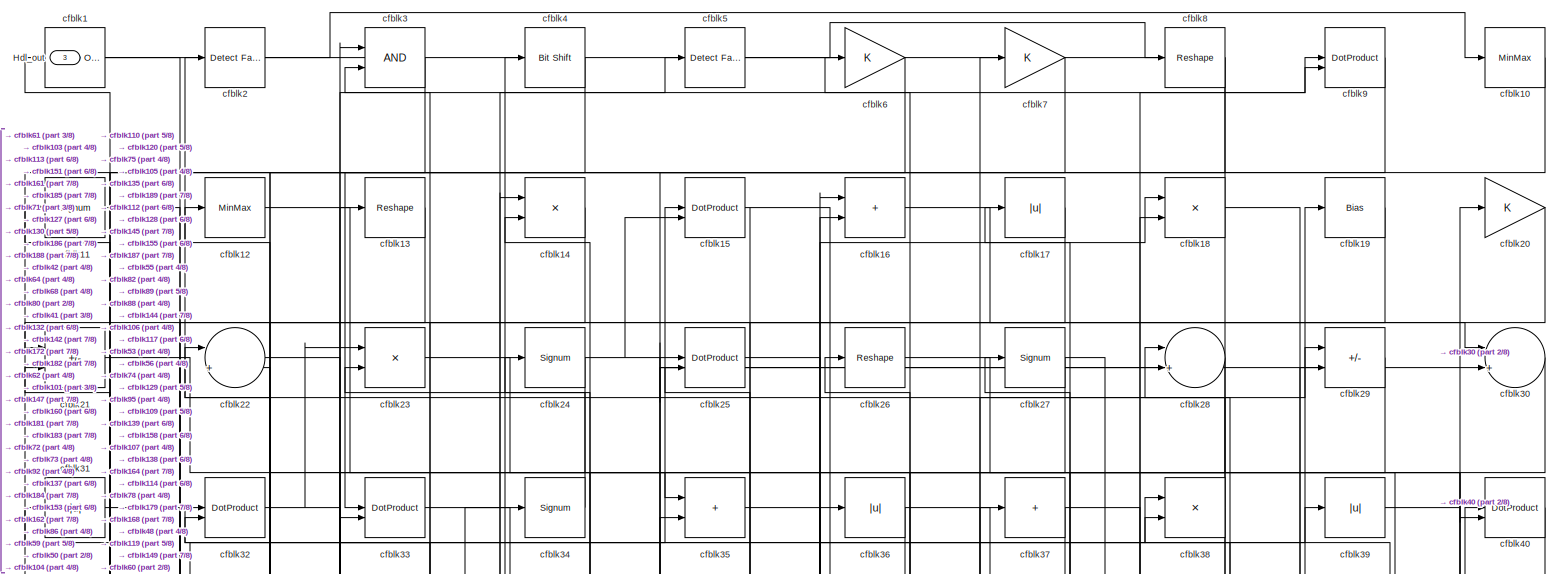
[diagram: root canvas - part 1/8, full width, top band]
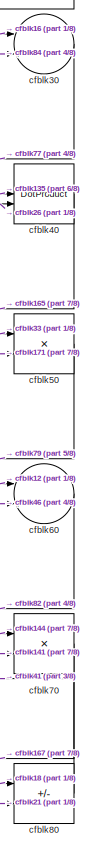
[diagram: root canvas - part 2/8, top right region]
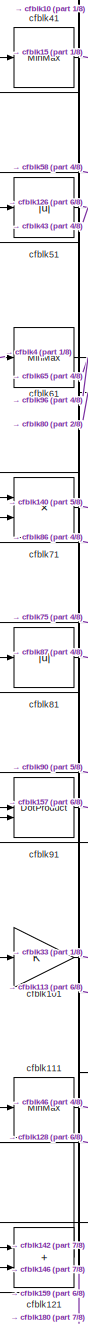
[diagram: root canvas - part 3/8, middle left region]
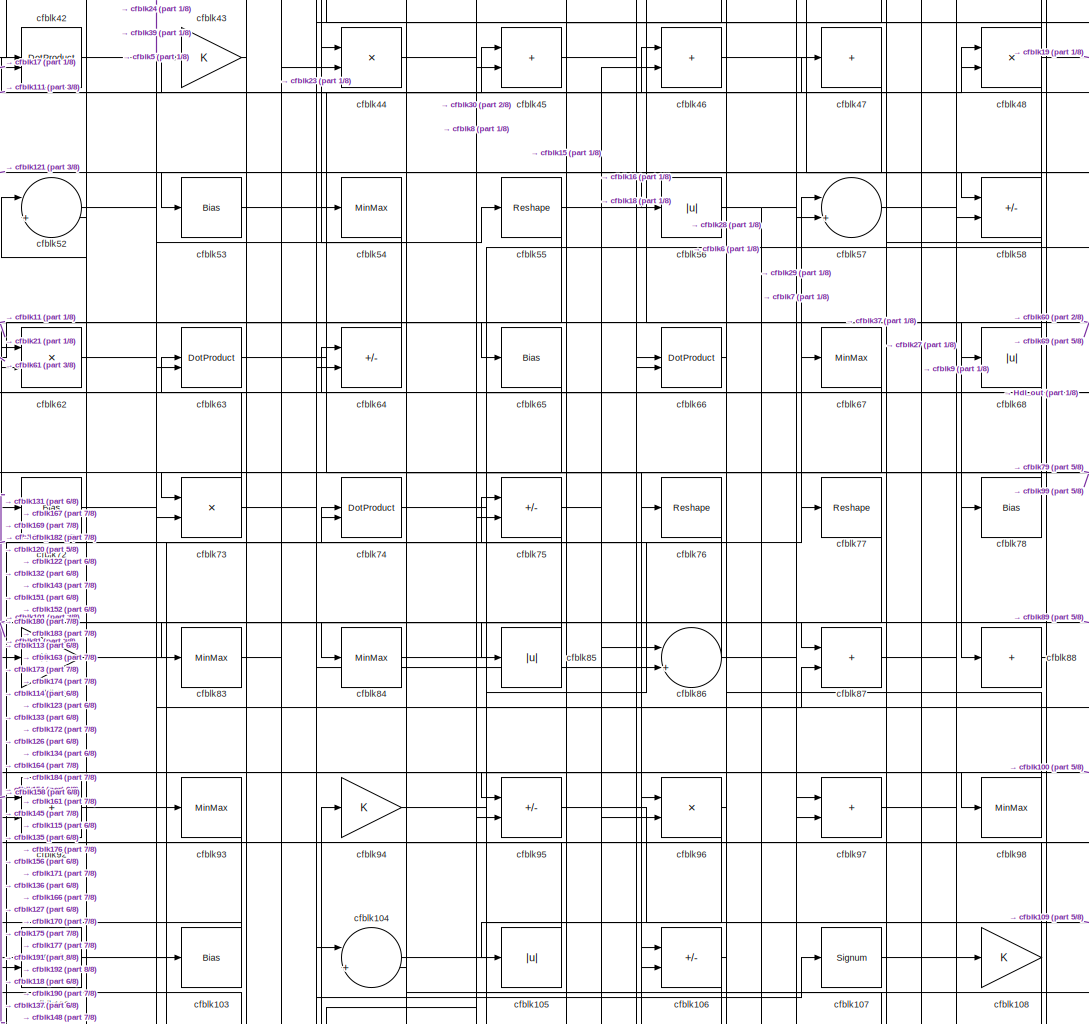
[diagram: root canvas - part 4/8, central region]
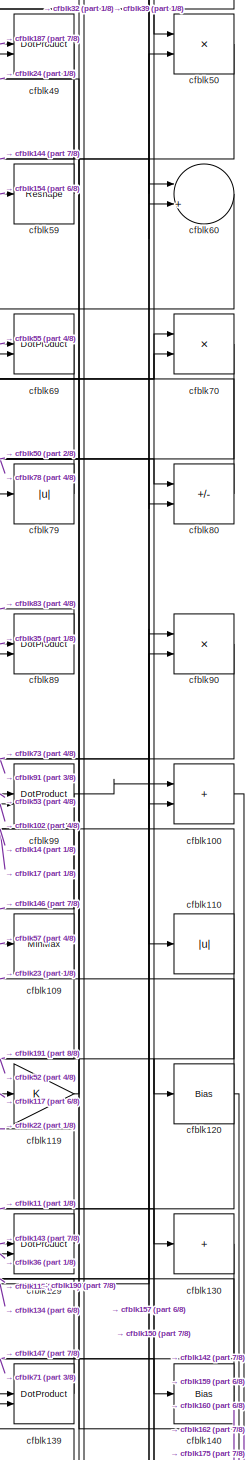
[diagram: root canvas - part 5/8, middle right region]
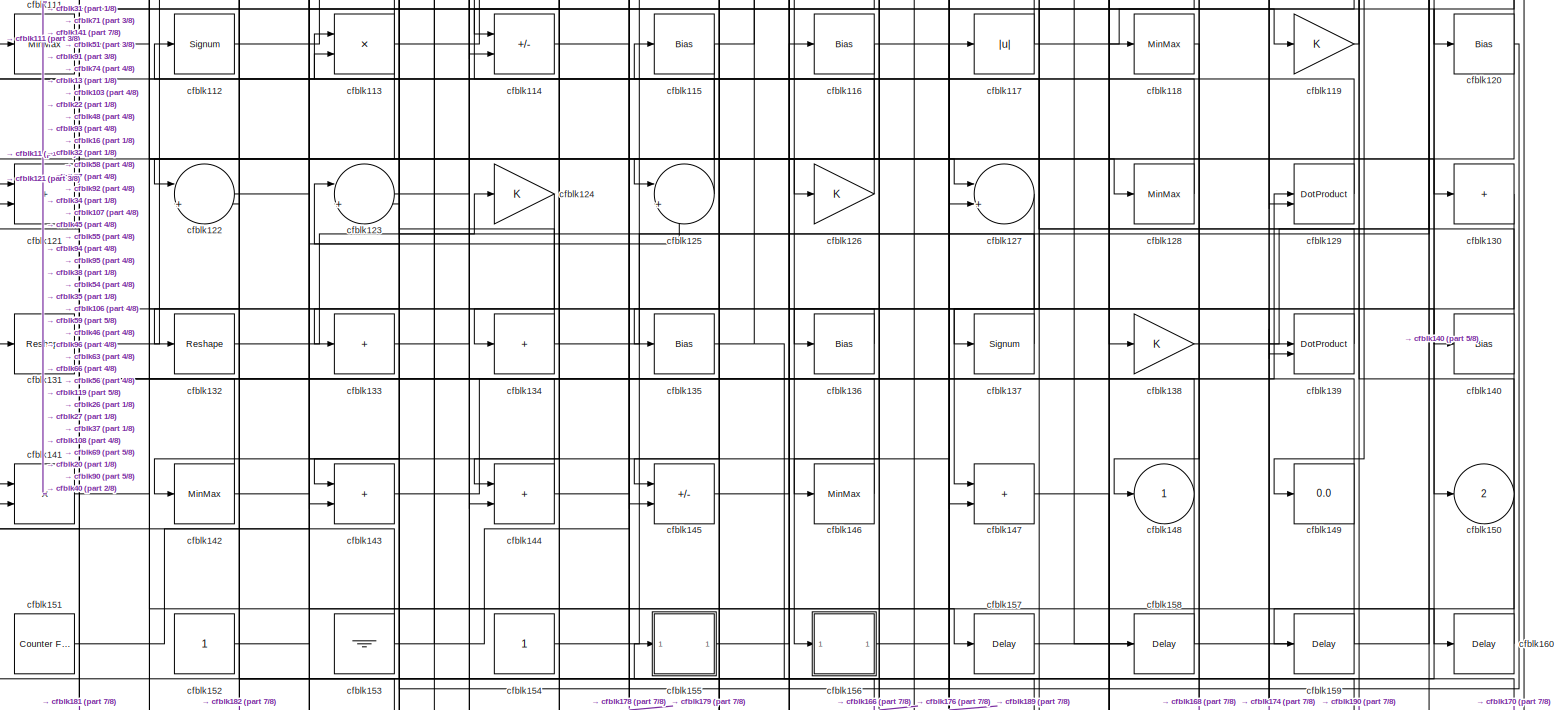
[diagram: root canvas - part 6/8, full width, bottom band]
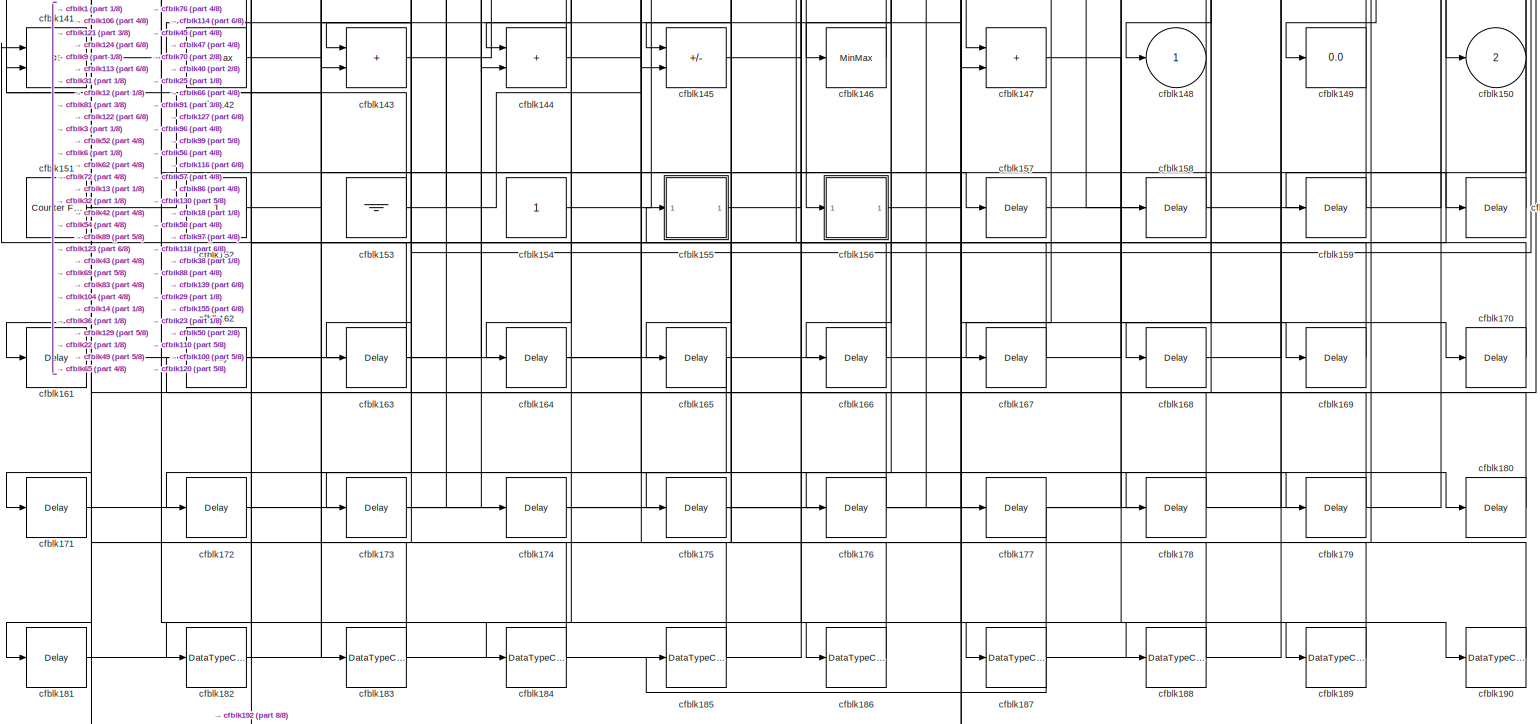
[diagram: root canvas - part 7/8, full width, bottom band]
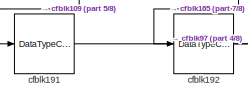
[diagram: root canvas - part 8/8, bottom left region]
MODEL slx_d97a354587f2
KIND model
CONFIG AbsTol = auto
CONFIG EnableMultiTasking = off
CONFIG FixedStep = auto
CONFIG MaxStep = auto
CONFIG MinStep = auto
CONFIG RelTol = 1e-3
CONFIG SampleTimeConstraint = Unconstrained
CONFIG SolverName = VariableStepAuto
CONFIG StartTime = 0.0
CONFIG StopTime = 10.0
BLOCK [Outport] Hdl_out
  OutDataTypeStr = uint8
  Port = 3
BLOCK [Reference] cfblk1  REF=simulink/Logic and Bit
Operations/Bitwise
Operator
  LibrarySourceBlock = hdlsllib/Logic and Bit\nOperations/Bitwise\nOperator
  SourceBlock = simulink/Logic and Bit\nOperations/Bitwise\nOperator
  SourceType = Bitwise Operator
BLOCK [MinMax] cfblk10
  OutDataTypeStr = uint8
BLOCK [Sum] cfblk100
  IconShape = rectangular
  OutDataTypeStr = uint8
BLOCK [Gain] cfblk101
  OutDataTypeStr = uint8
BLOCK [DotProduct] cfblk102
  OutDataTypeStr = uint8
BLOCK [Bias] cfblk103
  Bias = 0.0
  SaturateOnIntegerOverflow = off
BLOCK [Sum] cfblk104
  Inputs = |++
  OutDataTypeStr = uint8
BLOCK [Abs] cfblk105
  OutDataTypeStr = uint8
  SaturateOnIntegerOverflow = off
BLOCK [Sum] cfblk106
  IconShape = rectangular
  Inputs = +-
  OutDataTypeStr = uint8
BLOCK [Signum] cfblk107
BLOCK [Gain] cfblk108
  OutDataTypeStr = uint8
BLOCK [MinMax] cfblk109
  OutDataTypeStr = uint8
BLOCK [Signum] cfblk11
BLOCK [Abs] cfblk110
  OutDataTypeStr = uint8
  SaturateOnIntegerOverflow = off
BLOCK [MinMax] cfblk111
  OutDataTypeStr = uint8
BLOCK [Signum] cfblk112
BLOCK [Product] cfblk113
  Inputs = */
  OutDataTypeStr = uint8
  RndMeth = Zero
  SaturateOnIntegerOverflow = on
BLOCK [Sum] cfblk114
  IconShape = rectangular
  Inputs = +-
  OutDataTypeStr = uint8
BLOCK [Bias] cfblk115
  Bias = 0.0
  SaturateOnIntegerOverflow = off
BLOCK [Bias] cfblk116
  Bias = 0.0
  SaturateOnIntegerOverflow = off
BLOCK [Abs] cfblk117
  OutDataTypeStr = uint8
  SaturateOnIntegerOverflow = off
BLOCK [MinMax] cfblk118
  OutDataTypeStr = uint8
BLOCK [Gain] cfblk119
  OutDataTypeStr = uint8
BLOCK [MinMax] cfblk12
  OutDataTypeStr = uint8
BLOCK [Bias] cfblk120
  Bias = 0.0
  SaturateOnIntegerOverflow = off
BLOCK [Sum] cfblk121
  IconShape = rectangular
  OutDataTypeStr = uint8
BLOCK [Sum] cfblk122
  Inputs = |++
  OutDataTypeStr = uint8
BLOCK [Sum] cfblk123
  Inputs = |++
  OutDataTypeStr = uint8
BLOCK [Gain] cfblk124
  OutDataTypeStr = uint8
BLOCK [Sum] cfblk125
  Inputs = |++
  OutDataTypeStr = uint8
BLOCK [Gain] cfblk126
  OutDataTypeStr = uint8
BLOCK [Sum] cfblk127
  Inputs = |++
  OutDataTypeStr = uint8
BLOCK [MinMax] cfblk128
  OutDataTypeStr = uint8
BLOCK [DotProduct] cfblk129
  OutDataTypeStr = uint8
BLOCK [Reshape] cfblk13
BLOCK [Sum] cfblk130
  IconShape = rectangular
  Inputs = +
  OutDataTypeStr = uint8
BLOCK [Reshape] cfblk131
BLOCK [Reshape] cfblk132
BLOCK [Sum] cfblk133
  IconShape = rectangular
  Inputs = +
  OutDataTypeStr = uint8
BLOCK [Sum] cfblk134
  IconShape = rectangular
  Inputs = +
  OutDataTypeStr = uint8
BLOCK [Bias] cfblk135
  Bias = 0.0
  SaturateOnIntegerOverflow = off
BLOCK [Bias] cfblk136
  Bias = 0.0
  SaturateOnIntegerOverflow = off
BLOCK [Signum] cfblk137
BLOCK [Gain] cfblk138
  OutDataTypeStr = uint8
BLOCK [DotProduct] cfblk139
  OutDataTypeStr = uint8
BLOCK [Product] cfblk14
  Inputs = */
  OutDataTypeStr = uint8
  RndMeth = Zero
  SaturateOnIntegerOverflow = on
BLOCK [Bias] cfblk140
  Bias = 0.0
  SaturateOnIntegerOverflow = off
BLOCK [Product] cfblk141
  Inputs = */
  OutDataTypeStr = uint8
  RndMeth = Zero
  SaturateOnIntegerOverflow = on
BLOCK [MinMax] cfblk142
  OutDataTypeStr = uint8
BLOCK [Sum] cfblk143
  IconShape = rectangular
  OutDataTypeStr = uint8
BLOCK [Sum] cfblk144
  IconShape = rectangular
  OutDataTypeStr = uint8
BLOCK [Sum] cfblk145
  IconShape = rectangular
  Inputs = +-
  OutDataTypeStr = uint8
BLOCK [MinMax] cfblk146
  OutDataTypeStr = uint8
BLOCK [Sum] cfblk147
  IconShape = rectangular
  OutDataTypeStr = uint8
BLOCK [Outport] cfblk148
  OutDataTypeStr = uint8
  VectorParamsAs1DForOutWhenUnconnected = off
BLOCK [Display] cfblk149
  Decimation = 1
BLOCK [DotProduct] cfblk15
  OutDataTypeStr = uint8
BLOCK [Outport] cfblk150
  OutDataTypeStr = uint8
  Port = 2
  VectorParamsAs1DForOutWhenUnconnected = off
BLOCK [Reference] cfblk151  REF=hdlsllib/Sources/Counter
Free-Running
  SourceBlock = hdlsllib/Sources/Counter\nFree-Running
  SourceType = Counter Free-Running
BLOCK [Constant] cfblk152
  OutDataTypeStr = uint8
  SampleTime = -1
BLOCK [Ground] cfblk153
BLOCK [Constant] cfblk154
  OutDataTypeStr = uint8
  SampleTime = -1
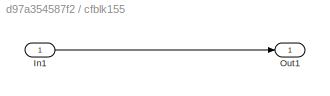
BLOCK [SubSystem] cfblk155
  LibrarySourceBlock = hdlsllib/Ports &\nSubsystems/Subsystem
BLOCK [Inport] cfblk155/In1
BLOCK [Outport] cfblk155/Out1
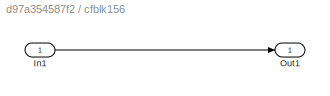
BLOCK [SubSystem] cfblk156
  LibrarySourceBlock = hdlsllib/Ports &\nSubsystems/Subsystem
BLOCK [Inport] cfblk156/In1
BLOCK [Outport] cfblk156/Out1
BLOCK [Delay] cfblk157
  InputPortMap = u0
  SampleTime = 1
BLOCK [Delay] cfblk158
  InputPortMap = u0
  SampleTime = 1
BLOCK [Delay] cfblk159
  InputPortMap = u0
  SampleTime = 1
BLOCK [Sum] cfblk16
  IconShape = rectangular
  OutDataTypeStr = uint8
BLOCK [Delay] cfblk160
  InputPortMap = u0
  SampleTime = 1
BLOCK [Delay] cfblk161
  InputPortMap = u0
  SampleTime = 1
BLOCK [Delay] cfblk162
  InputPortMap = u0
  SampleTime = 1
BLOCK [Delay] cfblk163
  InputPortMap = u0
  SampleTime = 1
BLOCK [Delay] cfblk164
  InputPortMap = u0
  SampleTime = 1
BLOCK [Delay] cfblk165
  InputPortMap = u0
  SampleTime = 1
BLOCK [Delay] cfblk166
  InputPortMap = u0
  SampleTime = 1
BLOCK [Delay] cfblk167
  InputPortMap = u0
  SampleTime = 1
BLOCK [Delay] cfblk168
  InputPortMap = u0
  SampleTime = 1
BLOCK [Delay] cfblk169
  InputPortMap = u0
  SampleTime = 1
BLOCK [Abs] cfblk17
  OutDataTypeStr = uint8
  SaturateOnIntegerOverflow = off
BLOCK [Delay] cfblk170
  InputPortMap = u0
  SampleTime = 1
BLOCK [Delay] cfblk171
  InputPortMap = u0
  SampleTime = 1
BLOCK [Delay] cfblk172
  InputPortMap = u0
  SampleTime = 1
BLOCK [Delay] cfblk173
  InputPortMap = u0
  SampleTime = 1
BLOCK [Delay] cfblk174
  InputPortMap = u0
  SampleTime = 1
BLOCK [Delay] cfblk175
  InputPortMap = u0
  SampleTime = 1
BLOCK [Delay] cfblk176
  InputPortMap = u0
  SampleTime = 1
BLOCK [Delay] cfblk177
  InputPortMap = u0
  SampleTime = 1
BLOCK [Delay] cfblk178
  InputPortMap = u0
  SampleTime = 1
BLOCK [Delay] cfblk179
  InputPortMap = u0
  SampleTime = 1
BLOCK [Product] cfblk18
  Inputs = */
  OutDataTypeStr = uint8
  RndMeth = Zero
  SaturateOnIntegerOverflow = on
BLOCK [Delay] cfblk180
  InputPortMap = u0
  SampleTime = 1
BLOCK [Delay] cfblk181
  InputPortMap = u0
  SampleTime = 1
BLOCK [DataTypeConversion] cfblk182
  OutDataTypeStr = uint8
  RndMeth = Floor
  SaturateOnIntegerOverflow = off
BLOCK [DataTypeConversion] cfblk183
  OutDataTypeStr = uint8
  RndMeth = Floor
  SaturateOnIntegerOverflow = off
BLOCK [DataTypeConversion] cfblk184
  OutDataTypeStr = uint8
  RndMeth = Floor
  SaturateOnIntegerOverflow = off
BLOCK [DataTypeConversion] cfblk185
  OutDataTypeStr = uint8
  RndMeth = Floor
  SaturateOnIntegerOverflow = off
BLOCK [DataTypeConversion] cfblk186
  OutDataTypeStr = uint8
  RndMeth = Floor
  SaturateOnIntegerOverflow = off
BLOCK [DataTypeConversion] cfblk187
  OutDataTypeStr = uint8
  RndMeth = Floor
  SaturateOnIntegerOverflow = off
BLOCK [DataTypeConversion] cfblk188
  OutDataTypeStr = uint8
  RndMeth = Floor
  SaturateOnIntegerOverflow = off
BLOCK [DataTypeConversion] cfblk189
  OutDataTypeStr = uint8
  RndMeth = Floor
  SaturateOnIntegerOverflow = off
BLOCK [Bias] cfblk19
  Bias = 0.0
  SaturateOnIntegerOverflow = off
BLOCK [DataTypeConversion] cfblk190
  OutDataTypeStr = uint8
  RndMeth = Floor
  SaturateOnIntegerOverflow = off
BLOCK [DataTypeConversion] cfblk191
  OutDataTypeStr = uint8
  RndMeth = Floor
  SaturateOnIntegerOverflow = off
BLOCK [DataTypeConversion] cfblk192
  OutDataTypeStr = uint8
  RndMeth = Floor
  SaturateOnIntegerOverflow = off
BLOCK [Reference] cfblk2  REF=hdlsllib/Logic and Bit
Operations/Detect Fall
Nonpositive
  SourceBlock = hdlsllib/Logic and Bit\nOperations/Detect Fall\nNonpositive
  SourceType = Detect Fall Nonpositive
BLOCK [Gain] cfblk20
  OutDataTypeStr = uint8
BLOCK [Sum] cfblk21
  IconShape = rectangular
  Inputs = +-
  OutDataTypeStr = uint8
BLOCK [Sum] cfblk22
  Inputs = |++
  OutDataTypeStr = uint8
BLOCK [Product] cfblk23
  Inputs = */
  OutDataTypeStr = uint8
  RndMeth = Zero
  SaturateOnIntegerOverflow = on
BLOCK [Signum] cfblk24
BLOCK [DotProduct] cfblk25
  OutDataTypeStr = uint8
BLOCK [Reshape] cfblk26
BLOCK [Signum] cfblk27
BLOCK [Sum] cfblk28
  Inputs = |++
  OutDataTypeStr = uint8
BLOCK [Sum] cfblk29
  IconShape = rectangular
  Inputs = +-
  OutDataTypeStr = uint8
BLOCK [Logic] cfblk3
  AllPortsSameDT = off
  OutDataTypeStr = boolean
BLOCK [Sum] cfblk30
  Inputs = |++
  OutDataTypeStr = uint8
BLOCK [Abs] cfblk31
  OutDataTypeStr = uint8
  SaturateOnIntegerOverflow = off
BLOCK [DotProduct] cfblk32
  OutDataTypeStr = uint8
BLOCK [DotProduct] cfblk33
  OutDataTypeStr = uint8
BLOCK [Signum] cfblk34
BLOCK [Sum] cfblk35
  IconShape = rectangular
  OutDataTypeStr = uint8
BLOCK [Abs] cfblk36
  OutDataTypeStr = uint8
  SaturateOnIntegerOverflow = off
BLOCK [Sum] cfblk37
  IconShape = rectangular
  Inputs = +
  OutDataTypeStr = uint8
BLOCK [Product] cfblk38
  Inputs = */
  OutDataTypeStr = uint8
  RndMeth = Zero
  SaturateOnIntegerOverflow = on
BLOCK [Abs] cfblk39
  OutDataTypeStr = uint8
  SaturateOnIntegerOverflow = off
BLOCK [Reference] cfblk4  REF=hdlsllib/Logic and Bit
Operations/Bit Shift
  SourceBlock = hdlsllib/Logic and Bit\nOperations/Bit Shift
  SourceType = Bit Shift
BLOCK [DotProduct] cfblk40
  OutDataTypeStr = uint8
BLOCK [MinMax] cfblk41
  OutDataTypeStr = uint8
BLOCK [DotProduct] cfblk42
  OutDataTypeStr = uint8
BLOCK [Gain] cfblk43
  OutDataTypeStr = uint8
BLOCK [Product] cfblk44
  Inputs = */
  OutDataTypeStr = uint8
  RndMeth = Zero
  SaturateOnIntegerOverflow = on
BLOCK [Sum] cfblk45
  IconShape = rectangular
  OutDataTypeStr = uint8
BLOCK [Sum] cfblk46
  IconShape = rectangular
  OutDataTypeStr = uint8
BLOCK [Sum] cfblk47
  IconShape = rectangular
  Inputs = +
  OutDataTypeStr = uint8
BLOCK [Product] cfblk48
  Inputs = */
  OutDataTypeStr = uint8
  RndMeth = Zero
  SaturateOnIntegerOverflow = on
BLOCK [DotProduct] cfblk49
  OutDataTypeStr = uint8
BLOCK [Reference] cfblk5  REF=hdlsllib/Logic and Bit
Operations/Detect Fall
Nonpositive
  SourceBlock = hdlsllib/Logic and Bit\nOperations/Detect Fall\nNonpositive
  SourceType = Detect Fall Nonpositive
BLOCK [Product] cfblk50
  Inputs = */
  OutDataTypeStr = uint8
  RndMeth = Zero
  SaturateOnIntegerOverflow = on
BLOCK [Abs] cfblk51
  OutDataTypeStr = uint8
  SaturateOnIntegerOverflow = off
BLOCK [Sum] cfblk52
  Inputs = |++
  OutDataTypeStr = uint8
BLOCK [Bias] cfblk53
  Bias = 0.0
  SaturateOnIntegerOverflow = off
BLOCK [MinMax] cfblk54
  OutDataTypeStr = uint8
BLOCK [Reshape] cfblk55
BLOCK [Abs] cfblk56
  OutDataTypeStr = uint8
  SaturateOnIntegerOverflow = off
BLOCK [Sum] cfblk57
  Inputs = |++
  OutDataTypeStr = uint8
BLOCK [Sum] cfblk58
  IconShape = rectangular
  Inputs = +-
  OutDataTypeStr = uint8
BLOCK [Reshape] cfblk59
BLOCK [Gain] cfblk6
  OutDataTypeStr = uint8
BLOCK [Sum] cfblk60
  Inputs = |++
  OutDataTypeStr = uint8
BLOCK [MinMax] cfblk61
  OutDataTypeStr = uint8
BLOCK [Product] cfblk62
  Inputs = */
  OutDataTypeStr = uint8
  RndMeth = Zero
  SaturateOnIntegerOverflow = on
BLOCK [DotProduct] cfblk63
  OutDataTypeStr = uint8
BLOCK [Sum] cfblk64
  IconShape = rectangular
  Inputs = +-
  OutDataTypeStr = uint8
BLOCK [Bias] cfblk65
  Bias = 0.0
  SaturateOnIntegerOverflow = off
BLOCK [DotProduct] cfblk66
  OutDataTypeStr = uint8
BLOCK [MinMax] cfblk67
  OutDataTypeStr = uint8
BLOCK [Abs] cfblk68
  OutDataTypeStr = uint8
  SaturateOnIntegerOverflow = off
BLOCK [DotProduct] cfblk69
  OutDataTypeStr = uint8
BLOCK [Gain] cfblk7
  OutDataTypeStr = uint8
BLOCK [Product] cfblk70
  Inputs = */
  OutDataTypeStr = uint8
  RndMeth = Zero
  SaturateOnIntegerOverflow = on
BLOCK [Product] cfblk71
  Inputs = */
  OutDataTypeStr = uint8
  RndMeth = Zero
  SaturateOnIntegerOverflow = on
BLOCK [Bias] cfblk72
  Bias = 0.0
  SaturateOnIntegerOverflow = off
BLOCK [Product] cfblk73
  Inputs = */
  OutDataTypeStr = uint8
  RndMeth = Zero
  SaturateOnIntegerOverflow = on
BLOCK [DotProduct] cfblk74
  OutDataTypeStr = uint8
BLOCK [Sum] cfblk75
  IconShape = rectangular
  Inputs = +-
  OutDataTypeStr = uint8
BLOCK [Reshape] cfblk76
BLOCK [Reshape] cfblk77
BLOCK [Bias] cfblk78
  Bias = 0.0
  SaturateOnIntegerOverflow = off
BLOCK [Abs] cfblk79
  OutDataTypeStr = uint8
  SaturateOnIntegerOverflow = off
BLOCK [Reshape] cfblk8
BLOCK [Sum] cfblk80
  IconShape = rectangular
  Inputs = +-
  OutDataTypeStr = uint8
BLOCK [Abs] cfblk81
  OutDataTypeStr = uint8
  SaturateOnIntegerOverflow = off
BLOCK [Gain] cfblk82
  OutDataTypeStr = uint8
BLOCK [MinMax] cfblk83
  OutDataTypeStr = uint8
BLOCK [MinMax] cfblk84
  OutDataTypeStr = uint8
BLOCK [Abs] cfblk85
  OutDataTypeStr = uint8
  SaturateOnIntegerOverflow = off
BLOCK [Sum] cfblk86
  Inputs = |++
  OutDataTypeStr = uint8
BLOCK [Sum] cfblk87
  IconShape = rectangular
  OutDataTypeStr = uint8
BLOCK [Sum] cfblk88
  IconShape = rectangular
  Inputs = +
  OutDataTypeStr = uint8
BLOCK [DotProduct] cfblk89
  OutDataTypeStr = uint8
BLOCK [DotProduct] cfblk9
  OutDataTypeStr = uint8
BLOCK [Product] cfblk90
  Inputs = */
  OutDataTypeStr = uint8
  RndMeth = Zero
  SaturateOnIntegerOverflow = on
BLOCK [DotProduct] cfblk91
  OutDataTypeStr = uint8
BLOCK [Sum] cfblk92
  IconShape = rectangular
  OutDataTypeStr = uint8
BLOCK [MinMax] cfblk93
  OutDataTypeStr = uint8
BLOCK [Gain] cfblk94
  OutDataTypeStr = uint8
BLOCK [Sum] cfblk95
  IconShape = rectangular
  Inputs = +-
  OutDataTypeStr = uint8
BLOCK [Product] cfblk96
  Inputs = */
  OutDataTypeStr = uint8
  RndMeth = Zero
  SaturateOnIntegerOverflow = on
BLOCK [Sum] cfblk97
  IconShape = rectangular
  OutDataTypeStr = uint8
BLOCK [MinMax] cfblk98
  OutDataTypeStr = uint8
BLOCK [DotProduct] cfblk99
  OutDataTypeStr = uint8
LINE cfblk100:1 -> cfblk162:1
LINE cfblk101:1 -> cfblk33:2
LINE cfblk102:1 -> cfblk99:2
LINE cfblk103:1 -> cfblk21:2
NET cfblk104:1 -> cfblk67:1, cfblk87:2
LINE cfblk105:1 -> cfblk63:1
NET cfblk106:1 -> cfblk171:1, cfblk6:1
LINE cfblk107:1 -> cfblk9:1
NET cfblk108:1 -> cfblk137:1, cfblk64:1
NET cfblk109:1 -> cfblk17:1, cfblk191:1
LINE cfblk10:1 -> cfblk71:1
NET cfblk110:1 -> cfblk14:2, cfblk150:1
LINE cfblk111:1 -> cfblk46:1
LINE cfblk112:1 -> cfblk16:1
NET cfblk113:1 -> cfblk11:1, cfblk121:1, cfblk95:2
NET cfblk114:1 -> cfblk178:1, cfblk179:1
NET cfblk115:1 -> cfblk122:1, cfblk46:2
NET cfblk116:1 -> cfblk125:1, cfblk189:1
NET cfblk117:1 -> cfblk119:1, cfblk26:1
LINE cfblk118:1 -> cfblk168:1
LINE cfblk119:1 -> cfblk32:1
NET cfblk11:1 -> cfblk130:1, cfblk68:1
NET cfblk120:1 -> cfblk142:1, cfblk175:1, cfblk23:2
LINE cfblk121:1 -> cfblk58:1
LINE cfblk122:1 -> cfblk55:1
LINE cfblk123:1 -> cfblk45:1
LINE cfblk124:1 -> cfblk181:1
LINE cfblk125:1 -> cfblk112:1
LINE cfblk126:1 -> cfblk94:1
LINE cfblk127:1 -> cfblk176:1
LINE cfblk128:1 -> cfblk111:1
LINE cfblk129:1 -> cfblk22:2
LINE cfblk12:1 -> cfblk60:1
LINE cfblk130:1 -> cfblk147:1
LINE cfblk131:1 -> cfblk74:1
NET cfblk132:1 -> cfblk124:1, cfblk125:2, cfblk48:1
LINE cfblk133:1 -> cfblk107:1
NET cfblk134:1 -> cfblk54:1, cfblk90:2, cfblk92:2
NET cfblk135:1 -> cfblk40:1, cfblk96:2
LINE cfblk136:1 -> cfblk134:1
LINE cfblk137:1 -> cfblk32:2
LINE cfblk138:1 -> cfblk20:1
LINE cfblk139:1 -> cfblk27:1
LINE cfblk13:1 -> cfblk132:1
NET cfblk140:1 -> cfblk115:1, cfblk159:1
NET cfblk141:1 -> cfblk113:1, cfblk70:2
NET cfblk142:1 -> cfblk12:1, cfblk81:1, cfblk89:2
LINE cfblk143:1 -> cfblk129:1
NET cfblk144:1 -> cfblk22:1, cfblk70:1
LINE cfblk145:1 -> cfblk36:1
LINE cfblk146:1 -> cfblk91:1
LINE cfblk147:1 -> cfblk169:1
LINE cfblk14:1 -> cfblk21:1
NET cfblk151:1 -> cfblk103:1, cfblk31:1
LINE cfblk152:1 -> cfblk93:1
NET cfblk153:1 -> cfblk131:1, cfblk34:1, cfblk35:2
NET cfblk154:1 -> cfblk106:2, cfblk59:1
LINE cfblk155/In1:1 -> cfblk155/Out1:1
LINE cfblk155:1 -> cfblk38:1
LINE cfblk156/In1:1 -> cfblk156/Out1:1
LINE cfblk156:1 -> cfblk117:1
LINE cfblk157:1 -> cfblk90:1
LINE cfblk158:1 -> cfblk92:1
LINE cfblk159:1 -> cfblk71:2
NET cfblk15:1 -> cfblk105:1, cfblk88:1
LINE cfblk160:1 -> cfblk69:2
LINE cfblk161:1 -> cfblk45:2
LINE cfblk162:1 -> cfblk14:1
LINE cfblk163:1 -> cfblk141:1
LINE cfblk164:1 -> cfblk18:2
LINE cfblk165:1 -> cfblk192:1
LINE cfblk166:1 -> cfblk123:1
LINE cfblk167:1 -> cfblk52:1
LINE cfblk168:1 -> cfblk29:2
LINE cfblk169:1 -> cfblk62:2
LINE cfblk16:1 -> cfblk30:1
LINE cfblk170:1 -> cfblk122:2
LINE cfblk171:1 -> cfblk50:2
LINE cfblk172:1 -> cfblk104:1
LINE cfblk173:1 -> cfblk58:2
LINE cfblk174:1 -> cfblk139:1
LINE cfblk175:1 -> cfblk57:2
LINE cfblk176:1 -> cfblk66:1
LINE cfblk177:1 -> cfblk185:1
LINE cfblk178:1 -> cfblk113:2
LINE cfblk179:1 -> cfblk38:2
LINE cfblk17:1 -> cfblk42:2
LINE cfblk180:1 -> cfblk121:2
LINE cfblk181:1 -> cfblk13:1
NET cfblk182:1 -> cfblk116:1, cfblk72:1
LINE cfblk183:1 -> cfblk3:1
LINE cfblk184:1 -> cfblk3:2
LINE cfblk185:1 -> cfblk1:1
LINE cfblk186:1 -> cfblk141:2
LINE cfblk187:1 -> cfblk49:1
LINE cfblk188:1 -> cfblk25:1
LINE cfblk189:1 -> cfblk25:2
LINE cfblk18:1 -> cfblk80:1
NET cfblk190:1 -> cfblk155:1, cfblk49:2
LINE cfblk191:1 -> cfblk97:1
LINE cfblk192:1 -> cfblk97:2
LINE cfblk19:1 -> cfblk53:1
LINE cfblk1:1 -> cfblk186:1
LINE cfblk20:1 -> cfblk135:1
NET cfblk21:1 -> cfblk35:1, cfblk64:2, cfblk80:2
LINE cfblk22:1 -> cfblk160:1
NET cfblk23:1 -> cfblk149:1, cfblk86:2, cfblk9:2
NET cfblk24:1 -> cfblk15:2, cfblk28:2, cfblk73:2
LINE cfblk25:1 -> cfblk187:1
LINE cfblk26:1 -> cfblk40:2
NET cfblk27:1 -> cfblk104:2, cfblk158:1
LINE cfblk28:1 -> cfblk56:1
LINE cfblk29:1 -> cfblk62:1
LINE cfblk2:1 -> cfblk10:1
LINE cfblk30:1 -> cfblk77:1
NET cfblk31:1 -> cfblk127:1, cfblk188:1
NET cfblk32:1 -> cfblk147:2, cfblk23:1
LINE cfblk33:1 -> cfblk50:1
LINE cfblk34:1 -> cfblk4:1
NET cfblk35:1 -> cfblk128:1, cfblk139:2, cfblk89:1
NET cfblk36:1 -> cfblk129:2, cfblk144:2
NET cfblk37:1 -> cfblk138:1, cfblk95:1
NET cfblk38:1 -> cfblk114:1, cfblk2:1
LINE cfblk39:1 -> cfblk110:1
LINE cfblk3:1 -> cfblk182:1
LINE cfblk40:1 -> cfblk165:1
LINE cfblk41:1 -> cfblk15:1
LINE cfblk42:1 -> cfblk180:1
LINE cfblk43:1 -> cfblk173:1
NET cfblk44:1 -> cfblk76:1, cfblk98:1
LINE cfblk45:1 -> cfblk66:2
LINE cfblk46:1 -> cfblk60:2
NET cfblk47:1 -> cfblk145:2, cfblk85:1
NET cfblk48:1 -> cfblk19:1, cfblk63:2
LINE cfblk49:1 -> cfblk144:1
LINE cfblk4:1 -> cfblk61:1
LINE cfblk50:1 -> cfblk79:1
NET cfblk51:1 -> cfblk126:1, cfblk43:1
LINE cfblk52:1 -> cfblk120:1
NET cfblk53:1 -> cfblk7:1, cfblk99:1
LINE cfblk54:1 -> cfblk143:2
NET cfblk55:1 -> cfblk114:2, cfblk18:1, cfblk69:1
NET cfblk56:1 -> cfblk127:2, cfblk177:1, cfblk29:1
LINE cfblk57:1 -> cfblk109:1
LINE cfblk58:1 -> cfblk123:2
LINE cfblk59:1 -> cfblk24:1
LINE cfblk5:1 -> cfblk8:1
LINE cfblk60:1 -> cfblk82:1
NET cfblk61:1 -> cfblk65:1, cfblk96:1
LINE cfblk62:1 -> cfblk183:1
LINE cfblk63:1 -> cfblk156:1
LINE cfblk64:1 -> cfblk44:1
LINE cfblk65:1 -> cfblk184:1
LINE cfblk66:1 -> cfblk136:1
LINE cfblk67:1 -> cfblk84:1
LINE cfblk68:1 -> cfblk42:1
LINE cfblk69:1 -> cfblk143:1
LINE cfblk6:1 -> cfblk172:1
LINE cfblk70:1 -> cfblk167:1
LINE cfblk71:1 -> cfblk140:1
LINE cfblk72:1 -> cfblk5:1
NET cfblk73:1 -> cfblk100:2, cfblk52:2
LINE cfblk74:1 -> cfblk37:1
NET cfblk75:1 -> cfblk101:1, cfblk86:1
NET cfblk76:1 -> cfblk163:1, cfblk164:1
NET cfblk77:1 -> cfblk102:2, cfblk133:1
NET cfblk78:1 -> Hdl_out:1, cfblk73:1
LINE cfblk79:1 -> cfblk78:1
LINE cfblk7:1 -> cfblk33:1
LINE cfblk80:1 -> cfblk41:1
LINE cfblk81:1 -> cfblk87:1
LINE cfblk82:1 -> cfblk16:2
NET cfblk83:1 -> cfblk174:1, cfblk44:2
NET cfblk84:1 -> cfblk30:2, cfblk57:1
LINE cfblk85:1 -> cfblk75:1
NET cfblk86:1 -> cfblk170:1, cfblk51:1
LINE cfblk87:1 -> cfblk108:1
NET cfblk88:1 -> cfblk148:1, cfblk28:1
LINE cfblk89:1 -> cfblk83:1
LINE cfblk8:1 -> cfblk75:2
LINE cfblk90:1 -> cfblk91:2
LINE cfblk91:1 -> cfblk157:1
NET cfblk92:1 -> cfblk39:1, cfblk47:1, cfblk48:2
LINE cfblk93:1 -> cfblk102:1
LINE cfblk94:1 -> cfblk106:1
LINE cfblk95:1 -> cfblk118:1
NET cfblk96:1 -> cfblk145:1, cfblk166:1
LINE cfblk97:1 -> cfblk190:1
LINE cfblk98:1 -> cfblk74:2
NET cfblk99:1 -> cfblk100:1, cfblk146:1
LINE cfblk9:1 -> cfblk161:1
note: NET lines group one-source signal fan-out (src -> all destinations, sorted); 1:1 wires keep LINE
